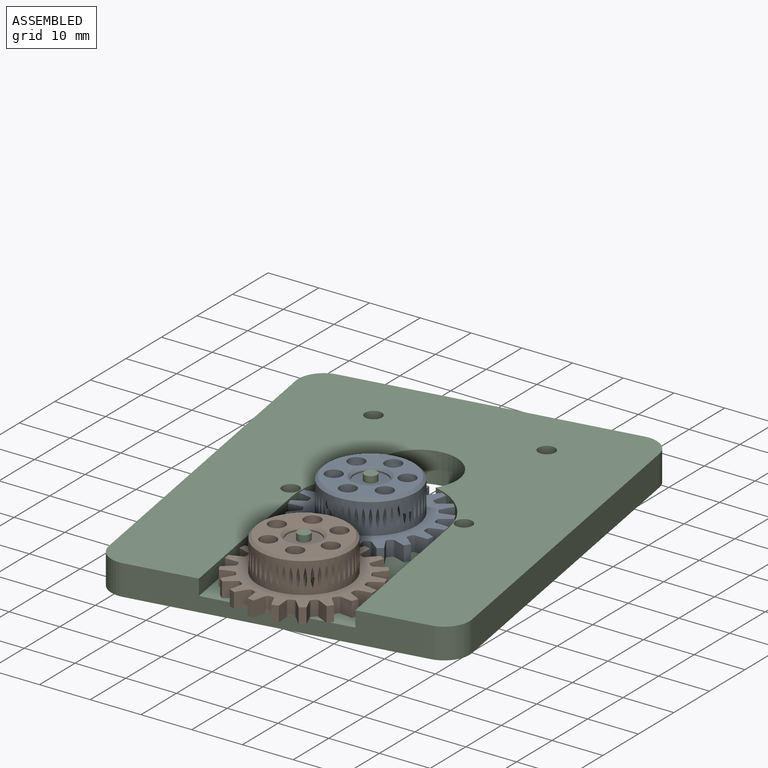
[diagram: assembled view]
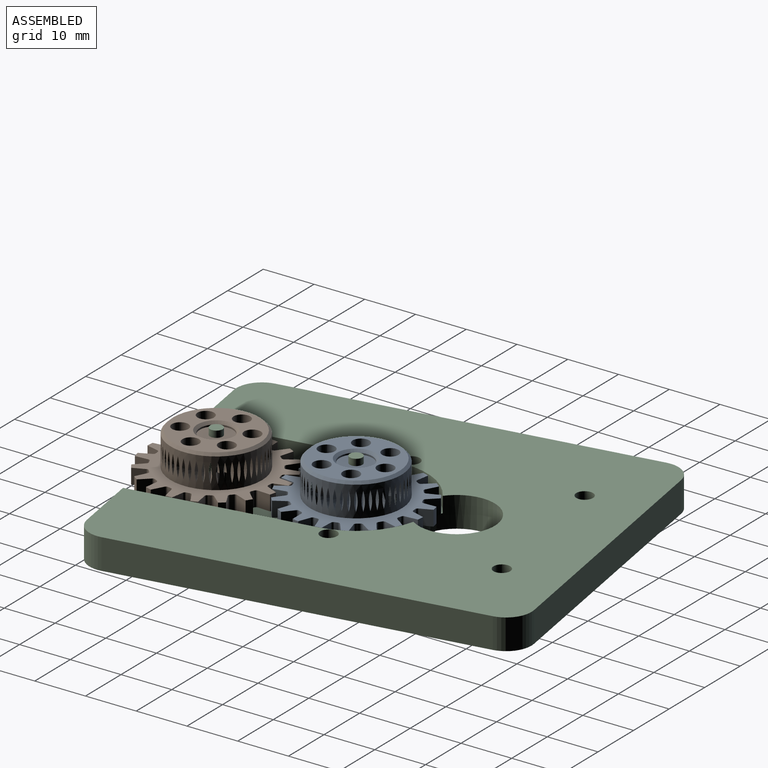
[diagram: assembled view, second angle]
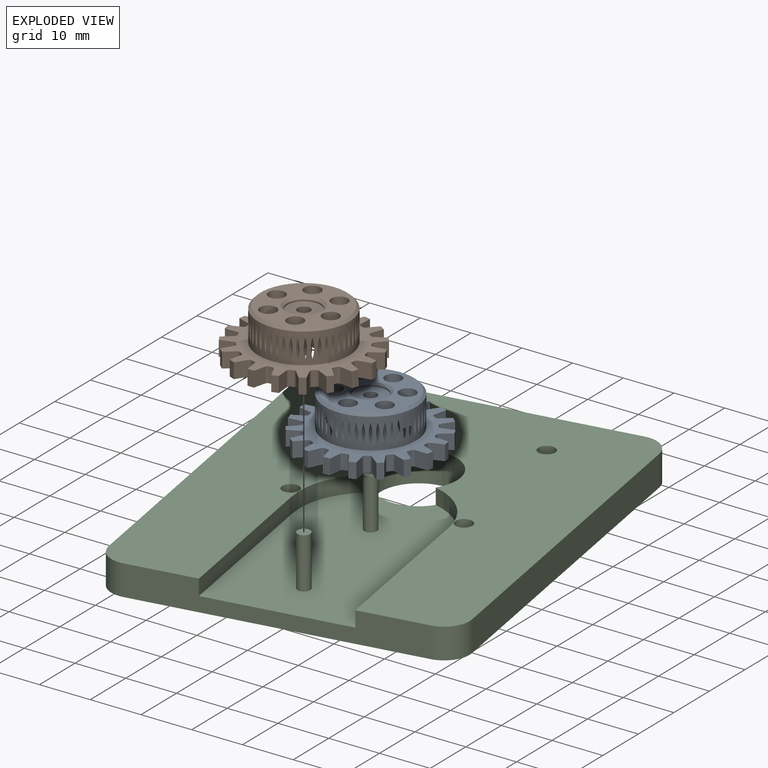
[diagram: exploded view]
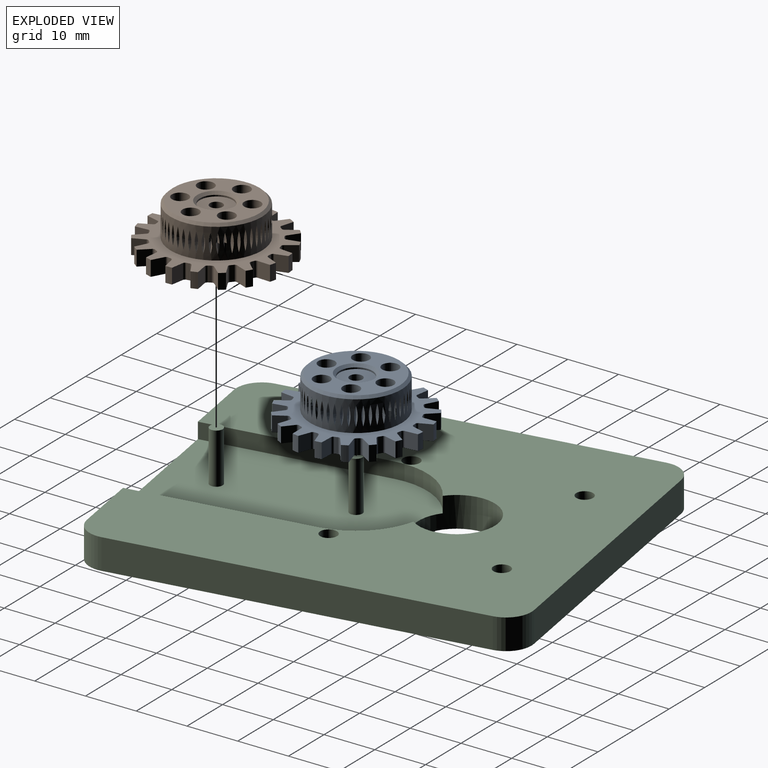
[diagram: exploded view, second angle]
ASSEMBLY  parts=3 mates=2
PART A: 231 faces, bbox 27.5x27.4x9.6 mm
  f0: cylinder r=13.75mm len=3mm, axis (0,0,-1), area 3.9mm2, adj f1,f113,f229,f230
  f1: plane 3x2.48mm, normal (1,0.02,0), area 7.4mm2, adj f0,f2,f113,f230
  f2: cylinder r=0.5mm len=3mm, axis (0,0,1), area 1.9mm2, adj f1,f3,f113,f230
  f3: cylinder r=11mm len=3mm, axis (0,0,1), area 1.8mm2, adj f2,f4,f113,f230
  f4: cylinder r=0.5mm len=3mm, axis (0,0,1), area 1.9mm2, adj f3,f5,f113,f230
  f5: plane 3x1.93mm, normal (-0.78,0.63,0), area 7.4mm2, adj f4,f6,f113,f230
  f6: cylinder r=13.75mm len=3mm, axis (0,0,-1), area 3.9mm2, adj f5,f7,f113,f230
  f7: plane 3x2.36mm, normal (0.95,-0.31,0), area 7.4mm2, adj f6,f8,f113,f230
  f8: cylinder r=0.5mm len=3mm, axis (0,0,1), area 1.9mm2, adj f7,f9,f113,f230
  f9: cylinder r=11mm len=3mm, axis (0,0,1), area 1.8mm2, adj f8,f10,f113,f230
  f10: cylinder r=0.5mm len=3mm, axis (0,0,1), area 1.9mm2, adj f9,f11,f113,f230
  f11: plane 3x2.1mm, normal (-0.53,0.85,0), area 7.4mm2, adj f10,f12,f113,f230
  f12: cylinder r=13.75mm len=3mm, axis (0,0,-1), area 3.9mm2, adj f11,f13,f113,f230
  f13: plane 3x1.98mm, normal (0.8,-0.6,0), area 7.4mm2, adj f12,f14,f113,f230
  f14: cylinder r=0.5mm len=3mm, axis (0,0,1), area 1.9mm2, adj f13,f15,f113,f230
  f15: cylinder r=11mm len=3mm, axis (0,0,1), area 1.8mm2, adj f14,f16,f113,f230
  f16: cylinder r=0.5mm len=3mm, axis (0,0,1), area 1.9mm2, adj f15,f17,f113,f230
  f17: plane 3x2.41mm, normal (-0.23,0.97,0), area 7.4mm2, adj f16,f18,f113,f230
  f18: cylinder r=13.75mm len=3mm, axis (0,0,-1), area 3.9mm2, adj f17,f19,f113,f230
  f19: plane 3x2.05mm, normal (0.56,-0.83,0), area 7.4mm2, adj f18,f20,f113,f230
  f20: cylinder r=0.5mm len=3mm, axis (0,0,1), area 1.9mm2, adj f19,f21,f113,f230
  f21: cylinder r=11mm len=3mm, axis (0,0,1), area 1.8mm2, adj f20,f22,f113,f230
  f22: cylinder r=0.5mm len=3mm, axis (0,0,1), area 1.9mm2, adj f21,f23,f113,f230
  f23: plane 3x2.47mm, normal (0.1,0.99,0), area 7.4mm2, adj f22,f24,f113,f230
  f24: cylinder r=13.75mm len=3mm, axis (0,0,-1), area 3.9mm2, adj f23,f25,f113,f230
  f25: plane 3x2.39mm, normal (0.26,-0.96,0), area 7.4mm2, adj f24,f26,f113,f230
  f26: cylinder r=0.5mm len=3mm, axis (0,0,1), area 1.9mm2, adj f25,f27,f113,f230
  f27: cylinder r=11mm len=3mm, axis (0,0,1), area 1.8mm2, adj f26,f28,f113,f230
  f28: cylinder r=0.5mm len=3mm, axis (0,0,1), area 1.9mm2, adj f27,f29,f113,f230
  f29: plane 3x2.25mm, normal (0.42,0.91,0), area 7.4mm2, adj f28,f30,f113,f230
  f30: cylinder r=13.75mm len=3mm, axis (0,0,-1), area 3.9mm2, adj f29,f31,f113,f230
  f31: plane 3x2.47mm, normal (-0.06,-1,0), area 7.4mm2, adj f30,f32,f113,f230
  f32: cylinder r=0.5mm len=3mm, axis (0,0,1), area 1.9mm2, adj f31,f33,f113,f230
  f33: cylinder r=11mm len=3mm, axis (0,0,1), area 1.8mm2, adj f32,f34,f113,f230
  f34: cylinder r=0.5mm len=3mm, axis (0,0,1), area 1.9mm2, adj f33,f35,f113,f230
  f35: plane 3x1.79mm, normal (0.69,0.72,0), area 7.4mm2, adj f34,f36,f113,f230
  f36: cylinder r=13.75mm len=3mm, axis (0,0,-1), area 3.9mm2, adj f35,f37,f113,f230
  f37: plane 3x2.29mm, normal (-0.38,-0.92,0), area 7.4mm2, adj f36,f38,f113,f230
  f38: cylinder r=0.5mm len=3mm, axis (0,0,1), area 1.9mm2, adj f37,f39,f113,f230
  f39: cylinder r=11mm len=3mm, axis (0,0,1), area 1.8mm2, adj f38,f40,f113,f230
  f40: cylinder r=0.5mm len=3mm, axis (0,0,1), area 1.9mm2, adj f39,f41,f113,f230
  f41: plane 3x2.2mm, normal (0.89,0.46,0), area 7.4mm2, adj f40,f42,f113,f230
  f42: cylinder r=13.75mm len=3mm, axis (0,0,-1), area 3.9mm2, adj f41,f43,f113,f230
  f43: plane 3x1.85mm, normal (-0.66,-0.75,0), area 7.4mm2, adj f42,f44,f113,f230
  f44: cylinder r=0.5mm len=3mm, axis (0,0,1), area 1.9mm2, adj f43,f45,f113,f230
  f45: cylinder r=11mm len=3mm, axis (0,0,1), area 1.8mm2, adj f44,f46,f113,f230
  f46: cylinder r=0.5mm len=3mm, axis (0,0,1), area 1.9mm2, adj f45,f47,f113,f230
  f47: plane 3x2.45mm, normal (0.99,0.15,0), area 7.4mm2, adj f46,f48,f113,f230
  f48: cylinder r=13.75mm len=3mm, axis (0,0,-1), area 3.9mm2, adj f47,f49,f113,f230
  f49: plane 3x2.16mm, normal (-0.87,-0.49,0), area 7.4mm2, adj f48,f50,f113,f230
  f50: cylinder r=0.5mm len=3mm, axis (0,0,1), area 1.9mm2, adj f49,f51,f113,f230
  f51: cylinder r=11mm len=3mm, axis (0,0,1), area 1.8mm2, adj f50,f52,f113,f230
  f52: cylinder r=0.5mm len=3mm, axis (0,0,1), area 1.9mm2, adj f51,f53,f113,f230
  f53: plane 3x2.44mm, normal (0.98,-0.18,0), area 7.4mm2, adj f52,f54,f113,f230
  f54: cylinder r=13.75mm len=3mm, axis (0,0,-1), area 3.9mm2, adj f53,f55,f113,f230
  f55: plane 3x2.44mm, normal (-0.98,-0.18,0), area 7.4mm2, adj f54,f56,f113,f230
  f56: cylinder r=0.5mm len=3mm, axis (0,0,1), area 1.9mm2, adj f55,f57,f113,f230
  f57: cylinder r=11mm len=3mm, axis (0,0,1), area 1.8mm2, adj f56,f58,f113,f230
  f58: cylinder r=0.5mm len=3mm, axis (0,0,1), area 1.9mm2, adj f57,f59,f113,f230
  f59: plane 3x2.16mm, normal (0.87,-0.49,0), area 7.4mm2, adj f58,f60,f113,f230
  f60: cylinder r=13.75mm len=3mm, axis (0,0,-1), area 3.9mm2, adj f59,f61,f113,f230
  f61: plane 3x2.45mm, normal (-0.99,0.15,0), area 7.4mm2, adj f60,f62,f113,f230
  f62: cylinder r=0.5mm len=3mm, axis (0,0,1), area 1.9mm2, adj f61,f63,f113,f230
  f63: cylinder r=11mm len=3mm, axis (0,0,1), area 1.8mm2, adj f62,f64,f113,f230
  f64: cylinder r=0.5mm len=3mm, axis (0,0,1), area 1.9mm2, adj f63,f65,f113,f230
  f65: plane 3x1.85mm, normal (0.66,-0.75,0), area 7.4mm2, adj f64,f66,f113,f230
  f66: cylinder r=13.75mm len=3mm, axis (0,0,-1), area 3.9mm2, adj f65,f67,f113,f230
  f67: plane 3x2.2mm, normal (-0.89,0.46,0), area 7.4mm2, adj f66,f68,f113,f230
  f68: cylinder r=0.5mm len=3mm, axis (0,0,1), area 1.9mm2, adj f67,f69,f113,f230
  f69: cylinder r=11mm len=3mm, axis (0,0,1), area 1.8mm2, adj f68,f70,f113,f230
  f70: cylinder r=0.5mm len=3mm, axis (0,0,1), area 1.9mm2, adj f69,f71,f113,f230
  f71: plane 3x2.29mm, normal (0.38,-0.92,0), area 7.4mm2, adj f70,f72,f113,f230
  f72: cylinder r=13.75mm len=3mm, axis (0,0,-1), area 3.9mm2, adj f71,f73,f113,f230
  f73: plane 3x1.79mm, normal (-0.69,0.72,0), area 7.4mm2, adj f72,f74,f113,f230
  f74: cylinder r=0.5mm len=3mm, axis (0,0,1), area 1.9mm2, adj f73,f75,f113,f230
  f75: cylinder r=11mm len=3mm, axis (0,0,1), area 1.8mm2, adj f74,f76,f113,f230
  f76: cylinder r=0.5mm len=3mm, axis (0,0,1), area 1.9mm2, adj f75,f77,f113,f230
  f77: plane 3x2.47mm, normal (0.06,-1,0), area 7.4mm2, adj f76,f78,f113,f230
  f78: cylinder r=13.75mm len=3mm, axis (0,0,-1), area 3.9mm2, adj f77,f79,f113,f230
  f79: plane 3x2.25mm, normal (-0.42,0.91,0), area 7.4mm2, adj f78,f80,f113,f230
  f80: cylinder r=0.5mm len=3mm, axis (0,0,1), area 1.9mm2, adj f79,f81,f113,f230
  f81: cylinder r=11mm len=3mm, axis (0,0,1), area 1.8mm2, adj f80,f82,f113,f230
  f82: cylinder r=0.5mm len=3mm, axis (0,0,1), area 1.9mm2, adj f81,f83,f113,f230
  f83: plane 3x2.39mm, normal (-0.26,-0.96,0), area 7.4mm2, adj f82,f84,f113,f230
  f84: cylinder r=13.75mm len=3mm, axis (0,0,-1), area 3.9mm2, adj f83,f85,f113,f230
  f85: plane 3x2.47mm, normal (-0.1,0.99,0), area 7.4mm2, adj f84,f86,f113,f230
  f86: cylinder r=0.5mm len=3mm, axis (0,0,1), area 1.9mm2, adj f85,f87,f113,f230
  f87: cylinder r=11mm len=3mm, axis (0,0,1), area 1.8mm2, adj f86,f88,f113,f230
  f88: cylinder r=0.5mm len=3mm, axis (0,0,1), area 1.9mm2, adj f87,f89,f113,f230
  f89: plane 3x2.05mm, normal (-0.56,-0.83,0), area 7.4mm2, adj f88,f90,f113,f230
  f90: cylinder r=13.75mm len=3mm, axis (0,0,-1), area 3.9mm2, adj f89,f91,f113,f230
  f91: plane 3x2.41mm, normal (0.23,0.97,0), area 7.4mm2, adj f90,f92,f113,f230
  f92: cylinder r=0.5mm len=3mm, axis (0,0,1), area 1.9mm2, adj f91,f93,f113,f230
  f93: cylinder r=11mm len=3mm, axis (0,0,1), area 1.8mm2, adj f92,f94,f113,f230
  f94: cylinder r=0.5mm len=3mm, axis (0,0,1), area 1.9mm2, adj f93,f95,f113,f230
  f95: plane 3x1.98mm, normal (-0.8,-0.6,0), area 7.4mm2, adj f94,f96,f113,f230
  f96: cylinder r=13.75mm len=3mm, axis (0,0,-1), area 3.9mm2, adj f95,f97,f113,f230
  f97: plane 3x2.1mm, normal (0.53,0.85,0), area 7.4mm2, adj f96,f98,f113,f230
  f98: cylinder r=0.5mm len=3mm, axis (0,0,1), area 1.9mm2, adj f97,f99,f113,f230
  f99: cylinder r=11mm len=3mm, axis (0,0,1), area 1.8mm2, adj f98,f100,f113,f230
  f100: cylinder r=0.5mm len=3mm, axis (0,0,1), area 1.9mm2, adj f99,f101,f113,f230
  f101: plane 3x2.36mm, normal (-0.95,-0.31,0), area 7.4mm2, adj f100,f102,f113,f230
  f102: cylinder r=13.75mm len=3mm, axis (0,0,-1), area 3.9mm2, adj f101,f103,f113,f230
  f103: plane 3x1.93mm, normal (0.78,0.63,0), area 7.4mm2, adj f102,f104,f113,f230
  f104: cylinder r=0.5mm len=3mm, axis (0,0,1), area 1.9mm2, adj f103,f105,f113,f230
  f105: cylinder r=11mm len=3mm, axis (0,0,1), area 1.8mm2, adj f104,f106,f113,f230
  f106: cylinder r=0.5mm len=3mm, axis (0,0,1), area 1.9mm2, adj f105,f107,f113,f230
  f107: plane 3x2.48mm, normal (-1,0.02,0), area 7.4mm2, adj f106,f108,f113,f230
  f108: cylinder r=13.75mm len=3mm, axis (0,0,-1), area 3.9mm2, adj f107,f109,f113,f230
  f109: plane 3x2.33mm, normal (0.94,0.34,0), area 7.4mm2, adj f108,f110,f113,f230
  f110: cylinder r=0.5mm len=3mm, axis (0,0,1), area 1.9mm2, adj f109,f111,f113,f230
  f111: cylinder r=11mm len=3mm, axis (0,0,1), area 1.8mm2, adj f110,f112,f113,f230
  f112: cylinder r=0.5mm len=3mm, axis (0,0,1), area 1.9mm2, adj f111,f113,f229,f230
  f113: plane 27.48x27.4mm, normal (0,0,1), area 221.1mm2, adj f0,f1,f2,f3,f4,f5,f6,f7
  f114: cylinder r=9mm len=18mm, axis (0,0,-1), area 271.1mm2, adj f113,f115,f116,f117,f118,f119,f120,f121
  f115: cone r=1.95mm half-angle=68.7deg, axis (0,1,0), area 0mm2, adj f114,f116
  f116: cone r=2.75mm half-angle=68.7deg, axis (0,-1,0), area 0mm2, adj f114,f115
  f117: cone r=1.95mm half-angle=68.7deg, axis (0.97,-0.26,0), area 0mm2, adj f114,f118
  f118: cone r=2.75mm half-angle=68.7deg, axis (-0.97,0.26,0), area 0mm2, adj f114,f117
  f119: cone r=1.95mm half-angle=68.7deg, axis (0.92,-0.38,0), area 0mm2, adj f114,f120
  f120: cone r=2.75mm half-angle=68.7deg, axis (-0.92,0.38,0), area 0mm2, adj f114,f119
  f121: cone r=1.95mm half-angle=68.7deg, axis (0.99,-0.13,0), area 0mm2, adj f114,f122
  f122: cone r=2.75mm half-angle=68.7deg, axis (-0.99,0.13,0), area 0mm2, adj f114,f121
  f123: cone r=1.95mm half-angle=68.7deg, axis (1,0,0), area 0mm2, adj f114,f124
  f124: cone r=2.75mm half-angle=68.7deg, axis (-1,0,0), area 0mm2, adj f114,f123
  f125: cone r=1.95mm half-angle=68.7deg, axis (0.92,0.38,0), area 0mm2, adj f114,f126
  f126: cone r=2.75mm half-angle=68.7deg, axis (-0.92,-0.38,0), area 0mm2, adj f114,f125
  f127: cone r=1.95mm half-angle=68.7deg, axis (0.87,0.5,0), area 0mm2, adj f114,f128
  f128: cone r=2.75mm half-angle=68.7deg, axis (-0.87,-0.5,0), area 0mm2, adj f114,f127
  f129: cone r=1.95mm half-angle=68.7deg, axis (0.97,0.26,0), area 0mm2, adj f114,f130
  f130: cone r=2.75mm half-angle=68.7deg, axis (-0.97,-0.26,0), area 0mm2, adj f114,f129
  f131: cone r=1.95mm half-angle=68.7deg, axis (0.99,0.13,0), area 0mm2, adj f114,f132
  f132: cone r=2.75mm half-angle=68.7deg, axis (-0.99,-0.13,0), area 0mm2, adj f114,f131
  f133: cone r=1.95mm half-angle=68.7deg, axis (0.13,0.99,0), area 0mm2, adj f114,f134
  f134: cone r=2.75mm half-angle=68.7deg, axis (-0.13,-0.99,0), area 0mm2, adj f114,f133
  f135: cone r=1.95mm half-angle=68.7deg, axis (0.38,0.92,0), area 0mm2, adj f114,f136
  f136: cone r=2.75mm half-angle=68.7deg, axis (-0.38,-0.92,0), area 0mm2, adj f114,f135
  f137: cone r=1.95mm half-angle=68.7deg, axis (0.26,0.97,0), area 0mm2, adj f114,f138
  f138: cone r=2.75mm half-angle=68.7deg, axis (-0.26,-0.97,0), area 0mm2, adj f114,f137
  f139: cone r=1.95mm half-angle=68.7deg, axis (0.71,0.71,0), area 0mm2, adj f114,f140
  f140: cone r=2.75mm half-angle=68.7deg, axis (-0.71,-0.71,0), area 0mm2, adj f114,f139
  f141: cone r=1.95mm half-angle=68.7deg, axis (0.79,0.61,0), area 0mm2, adj f114,f142
  f142: cone r=2.75mm half-angle=68.7deg, axis (-0.79,-0.61,0), area 0mm2, adj f114,f141
  f143: cone r=1.95mm half-angle=68.7deg, axis (0.5,0.87,0), area 0mm2, adj f114,f144
  f144: cone r=2.75mm half-angle=68.7deg, axis (-0.5,-0.87,0), area 0mm2, adj f114,f143
  f145: cone r=1.95mm half-angle=68.7deg, axis (0.61,0.79,0), area 0mm2, adj f114,f146
  f146: cone r=2.75mm half-angle=68.7deg, axis (-0.61,-0.79,0), area 0mm2, adj f114,f145
  f147: cone r=1.95mm half-angle=68.7deg, axis (-0.99,-0.13,0), area 0mm2, adj f114,f148
  f148: cone r=2.75mm half-angle=68.7deg, axis (0.99,0.13,0), area 0mm2, adj f114,f147
  f149: cone r=1.95mm half-angle=68.7deg, axis (-0.97,-0.26,0), area 0mm2, adj f114,f150
  f150: cone r=2.75mm half-angle=68.7deg, axis (0.97,0.26,0), area 0mm2, adj f114,f149
  f151: cone r=1.95mm half-angle=68.7deg, axis (-0.87,-0.5,0), area 0mm2, adj f114,f152
  f152: cone r=2.75mm half-angle=68.7deg, axis (0.87,0.5,0), area 0mm2, adj f114,f151
  f153: cone r=1.95mm half-angle=68.7deg, axis (-0.92,-0.38,0), area 0mm2, adj f114,f154
  f154: cone r=2.75mm half-angle=68.7deg, axis (0.92,0.38,0), area 0mm2, adj f114,f153
  f155: cone r=1.95mm half-angle=68.7deg, axis (-1,0,0), area 0mm2, adj f114,f156
  f156: cone r=2.75mm half-angle=68.7deg, axis (1,0,0), area 0mm2, adj f114,f155
  f157: cone r=1.95mm half-angle=68.7deg, axis (-0.99,0.13,0), area 0mm2, adj f114,f158
  f158: cone r=2.75mm half-angle=68.7deg, axis (0.99,-0.13,0), area 0mm2, adj f114,f157
  f159: cone r=1.95mm half-angle=68.7deg, axis (-0.92,0.38,0), area 0mm2, adj f114,f160
  f160: cone r=2.75mm half-angle=68.7deg, axis (0.92,-0.38,0), area 0mm2, adj f114,f159
  f161: cone r=1.95mm half-angle=68.7deg, axis (-0.97,0.26,0), area 0mm2, adj f114,f162
  f162: cone r=2.75mm half-angle=68.7deg, axis (0.97,-0.26,0), area 0mm2, adj f114,f161
  f163: cone r=1.95mm half-angle=68.7deg, axis (-0.38,0.92,0), area 0mm2, adj f114,f164
  f164: cone r=2.75mm half-angle=68.7deg, axis (0.38,-0.92,0), area 0mm2, adj f114,f163
  f165: cone r=1.95mm half-angle=68.7deg, axis (-0.5,0.87,0), area 0mm2, adj f114,f166
  f166: cone r=2.75mm half-angle=68.7deg, axis (0.5,-0.87,0), area 0mm2, adj f114,f165
  f167: cone r=1.95mm half-angle=68.7deg, axis (-0.26,0.97,0), area 0mm2, adj f114,f168
  f168: cone r=2.75mm half-angle=68.7deg, axis (0.26,-0.97,0), area 0mm2, adj f114,f167
  f169: cone r=1.95mm half-angle=68.7deg, axis (-0.13,0.99,0), area 0mm2, adj f114,f170
  f170: cone r=2.75mm half-angle=68.7deg, axis (0.13,-0.99,0), area 0mm2, adj f114,f169
  f171: cone r=1.95mm half-angle=68.7deg, axis (-0.79,0.61,0), area 0mm2, adj f114,f172
  f172: cone r=2.75mm half-angle=68.7deg, axis (0.79,-0.61,0), area 0mm2, adj f114,f171
  f173: cone r=1.95mm half-angle=68.7deg, axis (-0.87,0.5,0), area 0mm2, adj f114,f174
  f174: cone r=2.75mm half-angle=68.7deg, axis (0.87,-0.5,0), area 0mm2, adj f114,f173
  f175: cone r=1.95mm half-angle=68.7deg, axis (-0.61,0.79,0), area 0mm2, adj f114,f176
  f176: cone r=2.75mm half-angle=68.7deg, axis (0.61,-0.79,0), area 0mm2, adj f114,f175
  f177: cone r=1.95mm half-angle=68.7deg, axis (-0.71,0.71,0), area 0mm2, adj f114,f178
  f178: cone r=2.75mm half-angle=68.7deg, axis (0.71,-0.71,0), area 0mm2, adj f114,f177
  f179: cone r=1.95mm half-angle=68.7deg, axis (-0.13,-0.99,0), area 0mm2, adj f114,f180
  f180: cone r=2.75mm half-angle=68.7deg, axis (0.13,0.99,0), area 0mm2, adj f114,f179
  f181: cone r=1.95mm half-angle=68.7deg, axis (-0.38,-0.92,0), area 0mm2, adj f114,f182
  f182: cone r=2.75mm half-angle=68.7deg, axis (0.38,0.92,0), area 0mm2, adj f114,f181
  f183: cone r=1.95mm half-angle=68.7deg, axis (-0.26,-0.97,0), area 0mm2, adj f114,f184
  f184: cone r=2.75mm half-angle=68.7deg, axis (0.26,0.97,0), area 0mm2, adj f114,f183
  f185: cone r=1.95mm half-angle=68.7deg, axis (-0.71,-0.71,0), area 0mm2, adj f114,f186
  f186: cone r=2.75mm half-angle=68.7deg, axis (0.71,0.71,0), area 0mm2, adj f114,f185
  f187: cone r=1.95mm half-angle=68.7deg, axis (-0.79,-0.61,0), area 0mm2, adj f114,f188
  f188: cone r=2.75mm half-angle=68.7deg, axis (0.79,0.61,0), area 0mm2, adj f114,f187
  f189: cone r=1.95mm half-angle=68.7deg, axis (-0.5,-0.87,0), area 0mm2, adj f114,f190
  f190: cone r=2.75mm half-angle=68.7deg, axis (0.5,0.87,0), area 0mm2, adj f114,f189
  f191: cone r=1.95mm half-angle=68.7deg, axis (-0.61,-0.79,0), area 0mm2, adj f114,f192
  f192: cone r=2.75mm half-angle=68.7deg, axis (0.61,0.79,0), area 0mm2, adj f114,f191
  f193: cone r=1.95mm half-angle=68.7deg, axis (0.71,-0.71,0), area 0mm2, adj f114,f194
  f194: cone r=2.75mm half-angle=68.7deg, axis (-0.71,0.71,0), area 0mm2, adj f114,f193
  f195: cone r=1.95mm half-angle=68.7deg, axis (0.61,-0.79,0), area 0mm2, adj f114,f196
  f196: cone r=2.75mm half-angle=68.7deg, axis (-0.61,0.79,0), area 0mm2, adj f114,f195
  f197: cone r=1.95mm half-angle=68.7deg, axis (0.87,-0.5,0), area 0mm2, adj f114,f198
  f198: cone r=2.75mm half-angle=68.7deg, axis (-0.87,0.5,0), area 0mm2, adj f114,f197
  f199: cone r=1.95mm half-angle=68.7deg, axis (0.79,-0.61,0), area 0mm2, adj f114,f200
  f200: cone r=2.75mm half-angle=68.7deg, axis (-0.79,0.61,0), area 0mm2, adj f114,f199
  f201: cone r=1.95mm half-angle=68.7deg, axis (0.13,-0.99,0), area 0mm2, adj f114,f202
  f202: cone r=2.75mm half-angle=68.7deg, axis (-0.13,0.99,0), area 0mm2, adj f114,f201
  f203: cone r=1.95mm half-angle=68.7deg, axis (0.26,-0.97,0), area 0mm2, adj f114,f204
  f204: cone r=2.75mm half-angle=68.7deg, axis (-0.26,0.97,0), area 0mm2, adj f114,f203
  f205: cone r=1.95mm half-angle=68.7deg, axis (0.5,-0.87,0), area 0mm2, adj f114,f206
  f206: cone r=2.75mm half-angle=68.7deg, axis (-0.5,0.87,0), area 0mm2, adj f114,f205
  f207: cone r=1.95mm half-angle=68.7deg, axis (0.38,-0.92,0), area 0mm2, adj f114,f208
  f208: cone r=2.75mm half-angle=68.7deg, axis (-0.38,0.92,0), area 0mm2, adj f114,f207
  f209: cone r=1.95mm half-angle=68.7deg, axis (0,-1,0), area 0mm2, adj f114,f228
  f210: cone r=8.5mm half-angle=45deg, axis (0,0,-1), area 38.9mm2, adj f114,f211
  f211: plane 17x17mm, normal (0,0,1), area 133mm2, adj f210,f212,f222,f223,f224,f225,f226,f227
  f212: cone r=3.25mm half-angle=45deg, axis (0,0,1), area 15.6mm2, adj f211,f213
  f213: cylinder r=3.25mm len=6.5mm, axis (0,0,1), area 6.1mm2, adj f212,f214
  f214: plane 6.5x6.5mm, normal (0,0,1), area 28.3mm2, adj f213,f215
  f215: cylinder r=1.25mm len=8.7mm, axis (0,0,-1), area 68.3mm2, adj f214,f216
  f216: plane 4x4mm, normal (0,0,-1), area 7.7mm2, adj f215,f217
  f217: cylinder r=2mm len=4mm, axis (0,0,-1), area 3.8mm2, adj f216,f218
  f218: torus R=2.5mm, axis (0,0,1), area 10.8mm2, adj f217,f219
  f219: plane 17.5x17.5mm, normal (0,0,-1), area 171.1mm2, adj f218,f220,f222,f223,f224,f225,f226,f227
  f220: torus R=8.75mm, axis (0,0,1), area 44.8mm2, adj f219,f221
  f221: cylinder r=9.25mm len=18.5mm, axis (0,0,-1), area 17.4mm2, adj f220,f230
  f222: cylinder r=1.62mm len=8.7mm, axis (0,0,1), area 88.8mm2, adj f211,f219
  f223: cylinder r=1.62mm len=8.7mm, axis (0,0,1), area 88.8mm2, adj f211,f219
  f224: cylinder r=1.62mm len=8.7mm, axis (0,0,1), area 88.8mm2, adj f211,f219
  f225: cylinder r=1.62mm len=8.7mm, axis (0,0,1), area 88.8mm2, adj f211,f219
  f226: cylinder r=1.62mm len=8.7mm, axis (0,0,1), area 88.8mm2, adj f211,f219
  f227: cylinder r=1.62mm len=8.7mm, axis (0,0,1), area 88.8mm2, adj f211,f219
  f228: cone r=2.75mm half-angle=68.7deg, axis (0,1,0), area 0mm2, adj f114,f209
  f229: plane 3x2.33mm, normal (-0.94,0.34,0), area 7.4mm2, adj f0,f112,f113,f230
  f230: plane 27.48x27.4mm, normal (0,0,-1), area 206.8mm2, adj f0,f1,f2,f3,f4,f5,f6,f7
PART B: same geometry as A
PART C: 24 faces, bbox 65x80x12.9 mm
  f0: cylinder r=14mm len=12.88mm, axis (0,0,1), area 50.7mm2, adj f3,f13,f14,f19
  f1: cylinder r=14mm len=12.88mm, axis (0,0,1), area 50.7mm2, adj f3,f12,f14,f19
  f2: plane 55x6mm, normal (0,-1,0), area 243.2mm2, adj f3,f7,f8,f11,f12,f13,f14
  f3: plane 80x65mm, normal (0,0,1), area 3706mm2, adj f0,f1,f2,f4,f5,f6,f8,f9
  f4: plane 70x6mm, normal (1,0,0), area 420mm2, adj f3,f7,f8,f9
  f5: plane 55x6mm, normal (0,1,0), area 330mm2, adj f3,f7,f9,f10
  f6: plane 70x6mm, normal (-1,0,0), area 420mm2, adj f3,f7,f10,f11
  f7: plane 80x65mm, normal (0,0,-1), area 4967.6mm2, adj f2,f4,f5,f6,f8,f9,f10,f11
  f8: cylinder r=5mm len=6mm, axis (0,0,1), area 47.1mm2, adj f2,f3,f4,f7
  f9: cylinder r=5mm len=6mm, axis (0,0,-1), area 47.1mm2, adj f3,f4,f5,f7
  f10: cylinder r=5mm len=6mm, axis (0,0,1), area 47.1mm2, adj f3,f5,f6,f7
  f11: cylinder r=5mm len=6mm, axis (0,0,-1), area 47.1mm2, adj f2,f3,f6,f7
  f12: plane 35x3.1mm, normal (-1,0,0), area 108.5mm2, adj f1,f2,f3,f14
  f13: plane 35x3.1mm, normal (1,0,0), area 108.5mm2, adj f0,f2,f3,f14
  f14: plane 47.88x28mm, normal (0,0,1), area 1251.8mm2, adj f0,f1,f2,f12,f13,f15,f17,f19
  f15: cylinder r=1.25mm len=10mm, axis (0,0,-1), area 78.5mm2, adj f14,f16
  f16: plane 2.5x2.5mm, normal (0,0,1), area 4.9mm2, adj f15
  f17: cylinder r=1.25mm len=10mm, axis (0,0,-1), area 78.5mm2, adj f14,f18
  f18: plane 2.5x2.5mm, normal (0,0,1), area 4.9mm2, adj f17
  f19: cylinder r=7.5mm len=15mm, axis (0,0,-1), area 244.6mm2, adj f0,f1,f3,f7,f14
  f20: cylinder r=1.65mm len=6mm, axis (0,0,-1), area 62.2mm2, adj f3,f7
  f21: cylinder r=1.65mm len=6mm, axis (0,0,-1), area 62.2mm2, adj f3,f7
  f22: cylinder r=1.65mm len=6mm, axis (0,0,-1), area 62.2mm2, adj f3,f7
  f23: cylinder r=1.65mm len=6mm, axis (0,0,-1), area 62.2mm2, adj f3,f7
PLACE A rot(axis=(0,0,1),117.4deg) t=(5.46,-8.87,-0.22)mm
PLACE B rot(axis=(0,0,-1),98.5deg) t=(9.57,-33.53,-0.22)mm
PLACE C rot(axis=(0,0,1),9.5deg) t=(4.64,-3.94,-3.12)mm fixed
MATE revolute A.f3 <-> C.f0  axis (0,0,-1) through (5.46,-8.87,-0.22)mm
MATE revolute B.f3 <-> C.f17  axis (0,0,-1) through (9.57,-33.53,-0.22)mm
